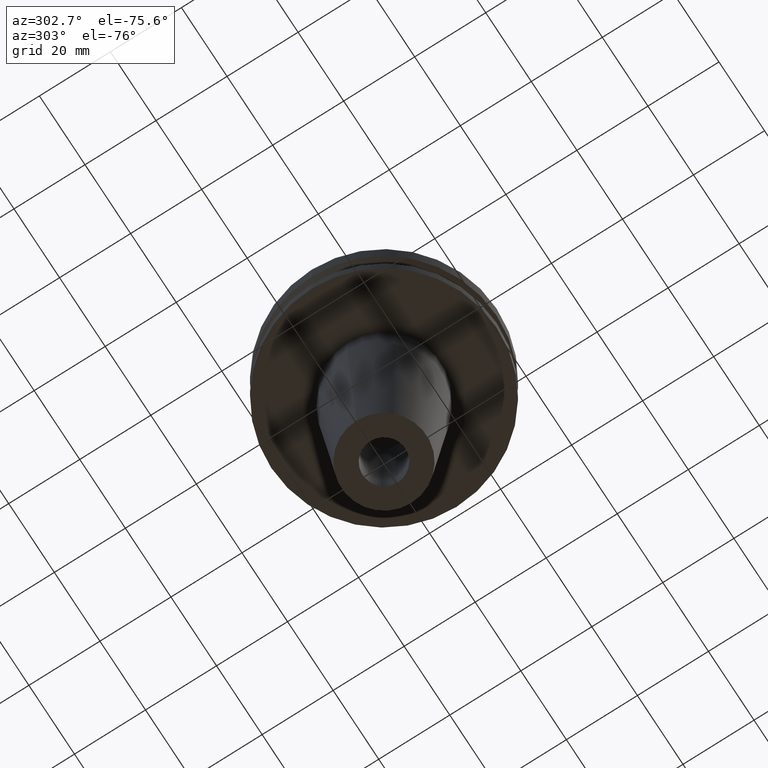
[diagram: clean part render]
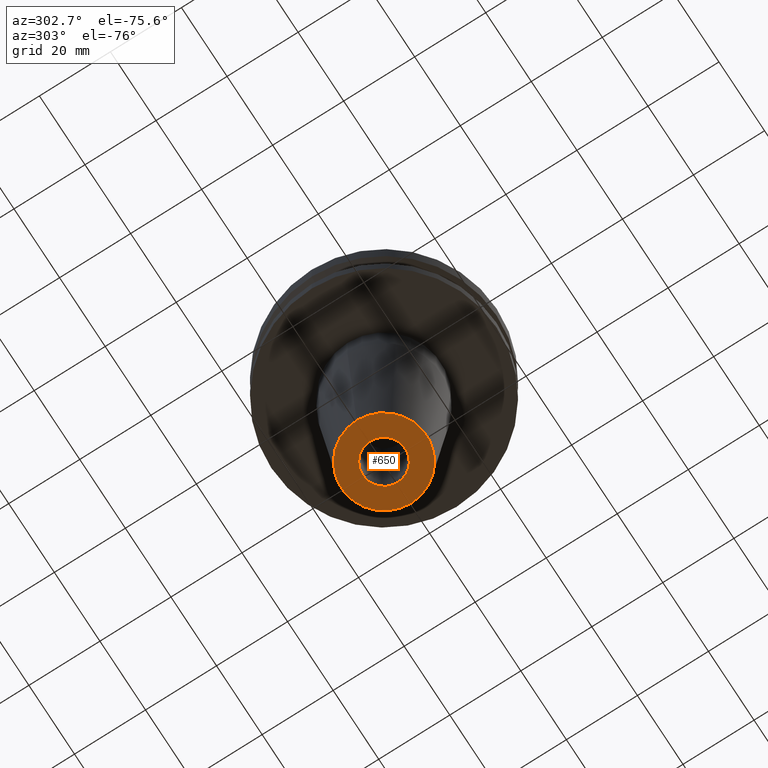
[diagram: same view with one face highlighted and labeled with its STEP entity id]
A machine part, auxiliary view. The second image highlights one B-rep face of the part: STEP entity #650.
In plain terms, the highlighted planar face has unit normal (0, -0, 1).
Its self-contained STEP definition (entity closure, byte-faithful):
#26 = VERTEX_POINT ( 'NONE', #307 ) ;
#45 = EDGE_CURVE ( 'NONE', #539, #26, #220, .T. ) ;
#48 = DIRECTION ( 'NONE',  ( 0.000000000000000000, -0.000000000000000000, 1.000000000000000000 ) ) ;
#63 = EDGE_CURVE ( 'NONE', #26, #539, #607, .T. ) ;
#121 = CARTESIAN_POINT ( 'NONE',  ( 0.000000000000000000, 0.000000000000000000, -80.00000000000000000 ) ) ;
#134 = DIRECTION ( 'NONE',  ( 1.000000000000000000, 0.000000000000000000, 0.000000000000000000 ) ) ;
#150 = VERTEX_POINT ( 'NONE', #702 ) ;
#178 = CIRCLE ( 'NONE', #684, 11.99999999999999289 ) ;
#198 = CARTESIAN_POINT ( 'NONE',  ( -5.999999999999993783, 7.347880794884111847E-16, -80.00000000000000000 ) ) ;
#207 = EDGE_LOOP ( 'NONE', ( #462, #298 ) ) ;
#220 = CIRCLE ( 'NONE', #430, 5.999999999999993783 ) ;
#222 = EDGE_CURVE ( 'NONE', #287, #150, #178, .T. ) ;
#240 = DIRECTION ( 'NONE',  ( 1.000000000000000000, 0.000000000000000000, 0.000000000000000000 ) ) ;
#270 = FACE_OUTER_BOUND ( 'NONE', #207, .T. ) ;
#287 = VERTEX_POINT ( 'NONE', #724 ) ;
#289 = DIRECTION ( 'NONE',  ( -0.000000000000000000, -0.000000000000000000, 1.000000000000000000 ) ) ;
#298 = ORIENTED_EDGE ( 'NONE', *, *, #753, .F. ) ;
#301 = DIRECTION ( 'NONE',  ( -0.000000000000000000, -0.000000000000000000, 1.000000000000000000 ) ) ;
#307 = CARTESIAN_POINT ( 'NONE',  ( 5.999999999999993783, 0.000000000000000000, -80.00000000000000000 ) ) ;
#347 = FACE_BOUND ( 'NONE', #606, .T. ) ;
#382 = CIRCLE ( 'NONE', #712, 11.99999999999999289 ) ;
#388 = AXIS2_PLACEMENT_3D ( 'NONE', #612, #301, #740 ) ;
#406 = DIRECTION ( 'NONE',  ( 1.000000000000000000, 0.000000000000000000, 0.000000000000000000 ) ) ;
#430 = AXIS2_PLACEMENT_3D ( 'NONE', #433, #672, #134 ) ;
#433 = CARTESIAN_POINT ( 'NONE',  ( 0.000000000000000000, 0.000000000000000000, -80.00000000000000000 ) ) ;
#462 = ORIENTED_EDGE ( 'NONE', *, *, #222, .F. ) ;
#539 = VERTEX_POINT ( 'NONE', #198 ) ;
#579 = CARTESIAN_POINT ( 'NONE',  ( 0.000000000000000000, 11.99999999999999289, -80.00000000000000000 ) ) ;
#594 = PLANE ( 'NONE',  #620 ) ;
#606 = EDGE_LOOP ( 'NONE', ( #774, #719 ) ) ;
#607 = CIRCLE ( 'NONE', #388, 5.999999999999993783 ) ;
#612 = CARTESIAN_POINT ( 'NONE',  ( 0.000000000000000000, 0.000000000000000000, -80.00000000000000000 ) ) ;
#620 = AXIS2_PLACEMENT_3D ( 'NONE', #579, #48, #761 ) ;
#650 = ADVANCED_FACE ( 'NONE', ( #270, #347 ), #594, .F. ) ;
#672 = DIRECTION ( 'NONE',  ( -0.000000000000000000, -0.000000000000000000, 1.000000000000000000 ) ) ;
#684 = AXIS2_PLACEMENT_3D ( 'NONE', #694, #768, #406 ) ;
#694 = CARTESIAN_POINT ( 'NONE',  ( 0.000000000000000000, 0.000000000000000000, -80.00000000000000000 ) ) ;
#702 = CARTESIAN_POINT ( 'NONE',  ( -11.99999999999999289, 1.714505518806293849E-15, -80.00000000000000000 ) ) ;
#712 = AXIS2_PLACEMENT_3D ( 'NONE', #121, #289, #240 ) ;
#719 = ORIENTED_EDGE ( 'NONE', *, *, #45, .T. ) ;
#724 = CARTESIAN_POINT ( 'NONE',  ( 11.99999999999999289, 0.000000000000000000, -80.00000000000000000 ) ) ;
#740 = DIRECTION ( 'NONE',  ( 1.000000000000000000, 0.000000000000000000, 0.000000000000000000 ) ) ;
#753 = EDGE_CURVE ( 'NONE', #150, #287, #382, .T. ) ;
#761 = DIRECTION ( 'NONE',  ( 1.000000000000000000, 0.000000000000000000, 0.000000000000000000 ) ) ;
#768 = DIRECTION ( 'NONE',  ( -0.000000000000000000, -0.000000000000000000, 1.000000000000000000 ) ) ;
#774 = ORIENTED_EDGE ( 'NONE', *, *, #63, .T. ) ;